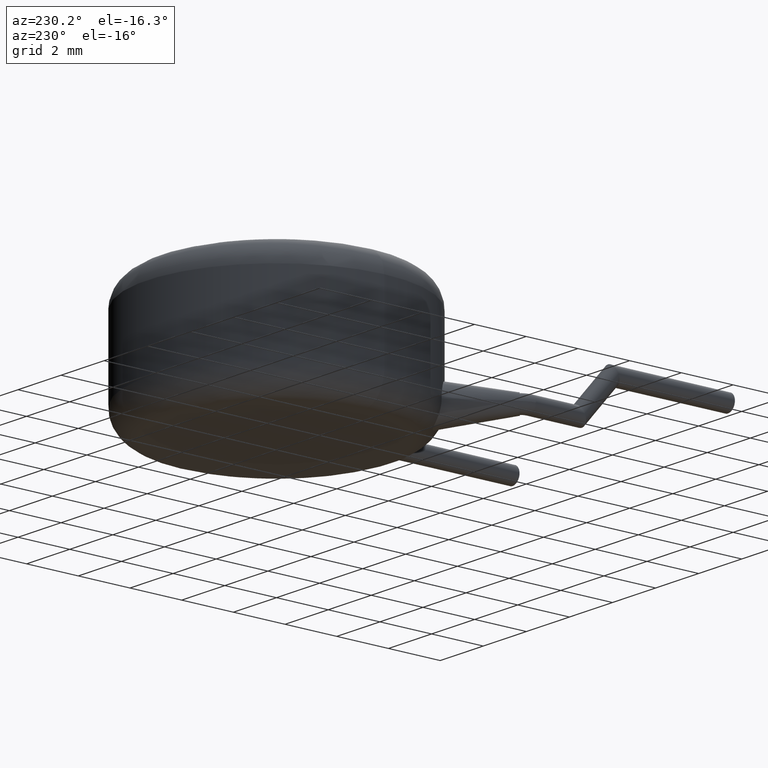
[diagram: clean part render]
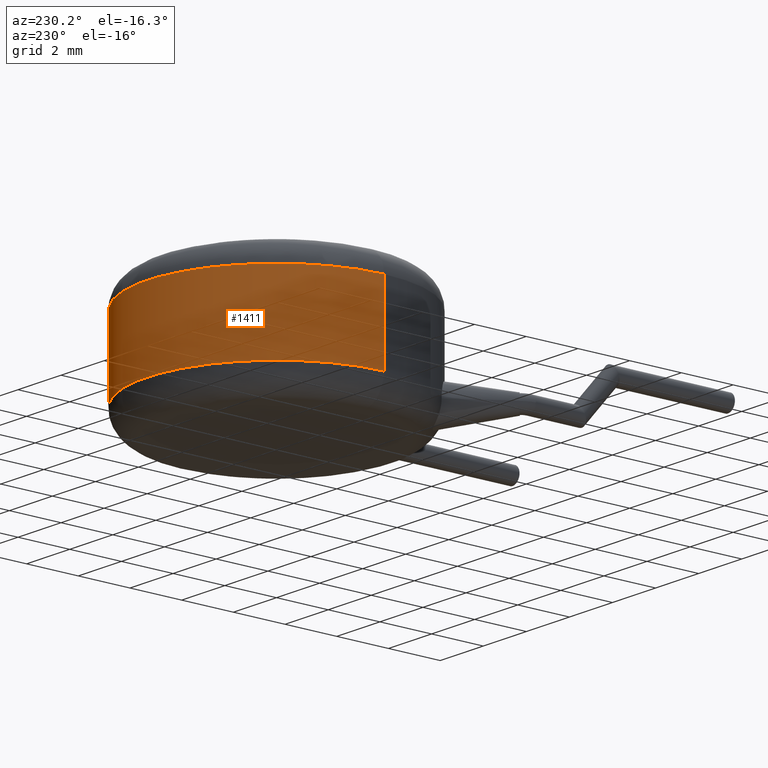
[diagram: same view with one face highlighted and labeled with its STEP entity id]
A machine part, auxiliary view. The second image highlights one B-rep face of the part: STEP entity #1411.
In plain terms, the highlighted cylindrical surface (partial cylindrical patch) has radius 5 mm, axis along (-0, -0, -1).
Its self-contained STEP definition (entity closure, byte-faithful):
#41 = DIRECTION ( 'NONE',  ( -0.0000000000000000000, -0.0000000000000000000, -1.000000000000000000 ) ) ;
#109 = CIRCLE ( 'NONE', #283, 5.000000000000000000 ) ;
#283 = AXIS2_PLACEMENT_3D ( 'NONE', #3315, #41, #3603 ) ;
#476 = EDGE_LOOP ( 'NONE', ( #2132, #1210, #2312, #896 ) ) ;
#525 = VECTOR ( 'NONE', #1463, 1000.000000000000000 ) ;
#664 = VECTOR ( 'NONE', #815, 1000.000000000000000 ) ;
#779 = VERTEX_POINT ( 'NONE', #3755 ) ;
#815 = DIRECTION ( 'NONE',  ( -0.0000000000000000000, -0.0000000000000000000, -1.000000000000000000 ) ) ;
#826 = DIRECTION ( 'NONE',  ( 1.000000000000000000, 0.0000000000000000000, 0.0000000000000000000 ) ) ;
#896 = ORIENTED_EDGE ( 'NONE', *, *, #1936, .F. ) ;
#1181 = CIRCLE ( 'NONE', #3787, 5.000000000000000000 ) ;
#1210 = ORIENTED_EDGE ( 'NONE', *, *, #4014, .T. ) ;
#1274 = CARTESIAN_POINT ( 'NONE',  ( -5.000000000000000000, 0.0000000000000000000, 1.000000000000000000 ) ) ;
#1411 = ADVANCED_FACE ( 'NONE', ( #1905 ), #2475, .T. ) ;
#1462 = CARTESIAN_POINT ( 'NONE',  ( 0.0000000000000000000, 0.0000000000000000000, 1.000000000000000000 ) ) ;
#1463 = DIRECTION ( 'NONE',  ( -0.0000000000000000000, -0.0000000000000000000, -1.000000000000000000 ) ) ;
#1532 = LINE ( 'NONE', #3796, #664 ) ;
#1654 = EDGE_CURVE ( 'NONE', #3555, #1795, #1181, .T. ) ;
#1795 = VERTEX_POINT ( 'NONE', #1274 ) ;
#1905 = FACE_OUTER_BOUND ( 'NONE', #476, .T. ) ;
#1936 = EDGE_CURVE ( 'NONE', #779, #1795, #2325, .T. ) ;
#2053 = DIRECTION ( 'NONE',  ( -1.000000000000000000, 0.0000000000000000000, 0.0000000000000000000 ) ) ;
#2132 = ORIENTED_EDGE ( 'NONE', *, *, #2738, .T. ) ;
#2312 = ORIENTED_EDGE ( 'NONE', *, *, #1654, .T. ) ;
#2325 = LINE ( 'NONE', #4127, #525 ) ;
#2363 = DIRECTION ( 'NONE',  ( -0.0000000000000000000, -0.0000000000000000000, -1.000000000000000000 ) ) ;
#2475 = CYLINDRICAL_SURFACE ( 'NONE', #3260, 5.000000000000000000 ) ;
#2738 = EDGE_CURVE ( 'NONE', #779, #3038, #109, .T. ) ;
#3038 = VERTEX_POINT ( 'NONE', #3291 ) ;
#3260 = AXIS2_PLACEMENT_3D ( 'NONE', #4049, #2363, #2053 ) ;
#3291 = CARTESIAN_POINT ( 'NONE',  ( 5.000000000000000000, 6.123233995736766300E-016, 4.000000000000000000 ) ) ;
#3315 = CARTESIAN_POINT ( 'NONE',  ( 0.0000000000000000000, 0.0000000000000000000, 4.000000000000000000 ) ) ;
#3409 = DIRECTION ( 'NONE',  ( 0.0000000000000000000, 0.0000000000000000000, 1.000000000000000000 ) ) ;
#3555 = VERTEX_POINT ( 'NONE', #3571 ) ;
#3571 = CARTESIAN_POINT ( 'NONE',  ( 5.000000000000000000, 6.123233995736766300E-016, 1.000000000000000000 ) ) ;
#3603 = DIRECTION ( 'NONE',  ( 1.000000000000000000, 0.0000000000000000000, 0.0000000000000000000 ) ) ;
#3755 = CARTESIAN_POINT ( 'NONE',  ( -5.000000000000000000, 0.0000000000000000000, 4.000000000000000000 ) ) ;
#3787 = AXIS2_PLACEMENT_3D ( 'NONE', #1462, #3409, #826 ) ;
#3796 = CARTESIAN_POINT ( 'NONE',  ( 5.000000000000000000, 6.123233995736766300E-016, 5.000000000000000000 ) ) ;
#4014 = EDGE_CURVE ( 'NONE', #3038, #3555, #1532, .T. ) ;
#4049 = CARTESIAN_POINT ( 'NONE',  ( 0.0000000000000000000, 0.0000000000000000000, 5.000000000000000000 ) ) ;
#4127 = CARTESIAN_POINT ( 'NONE',  ( -5.000000000000000000, 0.0000000000000000000, 5.000000000000000000 ) ) ;